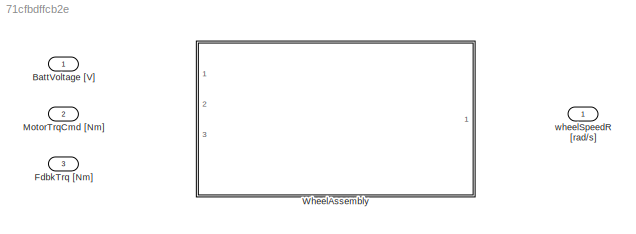
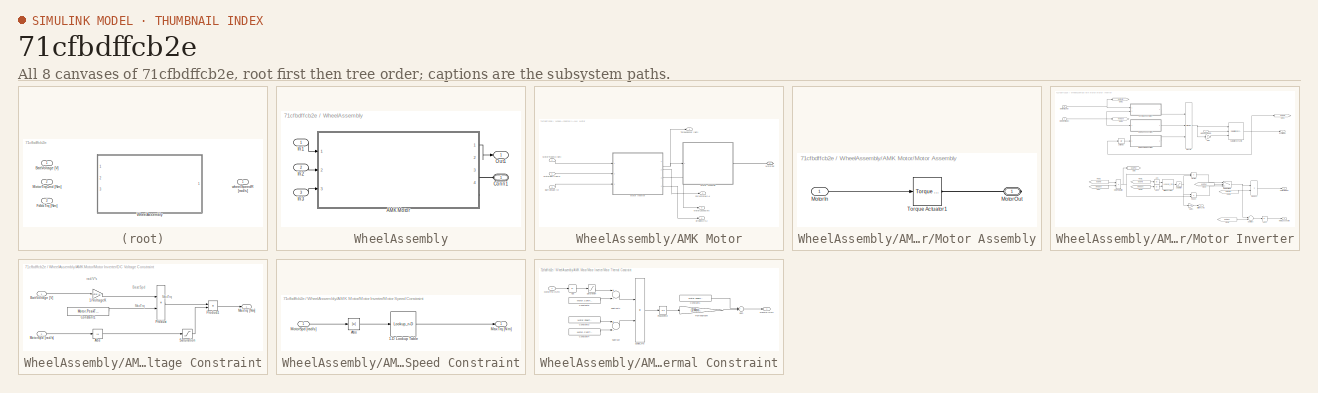
[diagram: thumbnail index - all 8 canvases of the model, root first then tree order]
MODEL slx_71cfbdffcb2e
KIND library
CONFIG AbsTol = auto
CONFIG FixedStep = auto
CONFIG MaxStep = auto
CONFIG MinStep = auto
CONFIG RelTol = 1e-3
CONFIG SampleTimeConstraint = Unconstrained
CONFIG Solver = ode45
CONFIG SolverMode = Auto
CONFIG SolverName = ode45
CONFIG StartTime = 0.0
CONFIG StopTime = 10.0
BLOCK [Inport] BattVoltage [V]
  IconDisplay = Port number
BLOCK [Inport] FdbkTrq [Nm]
  IconDisplay = Port number
  Port = 3
BLOCK [Inport] MotorTrqCmd [Nm]
  IconDisplay = Port number
  Port = 2
BLOCK [SubSystem] WheelAssembly
  Ports = [3, 1, 0, 0, 0, 1]
  RequestExecContextInheritance = off
BLOCK [SubSystem] WheelAssembly/AMK Motor
  Ports = [3, 4, 0, 0, 0, 0, 1]
  RequestExecContextInheritance = off
BLOCK [Inport] WheelAssembly/AMK Motor/BattVoltage [V]
  IconDisplay = Port number
  Port = 3
BLOCK [Outport] WheelAssembly/AMK Motor/CurrentDraw [A]
  IconDisplay = Port number
  Port = 2
BLOCK [Outport] WheelAssembly/AMK Motor/Efficiency[%]
  IconDisplay = Port number
  Port = 4
BLOCK [SubSystem] WheelAssembly/AMK Motor/Motor Assembly
  Ports = [1, 0, 0, 0, 0, 0, 1]
  RequestExecContextInheritance = off
BLOCK [Inport] WheelAssembly/AMK Motor/Motor Assembly/MotorIn
  IconDisplay = Port number
BLOCK [PMIOPort] WheelAssembly/AMK Motor/Motor Assembly/MotorOut
  Port = 1
  Side = Right
BLOCK [Reference] WheelAssembly/AMK Motor/Motor Assembly/Torque Actuator1  REF=driveline/Sensors &  (lib defined in slx_0115b7ecc7e4, slx_0630d05a24ab, +7 more)
Actuators/Torque Actuator
  Ports = [1, 0, 0, 0, 0, 0, 1]
  SourceBlock = driveline/Sensors &\nActuators/Torque Actuator
  SourceType = Torque Actuator
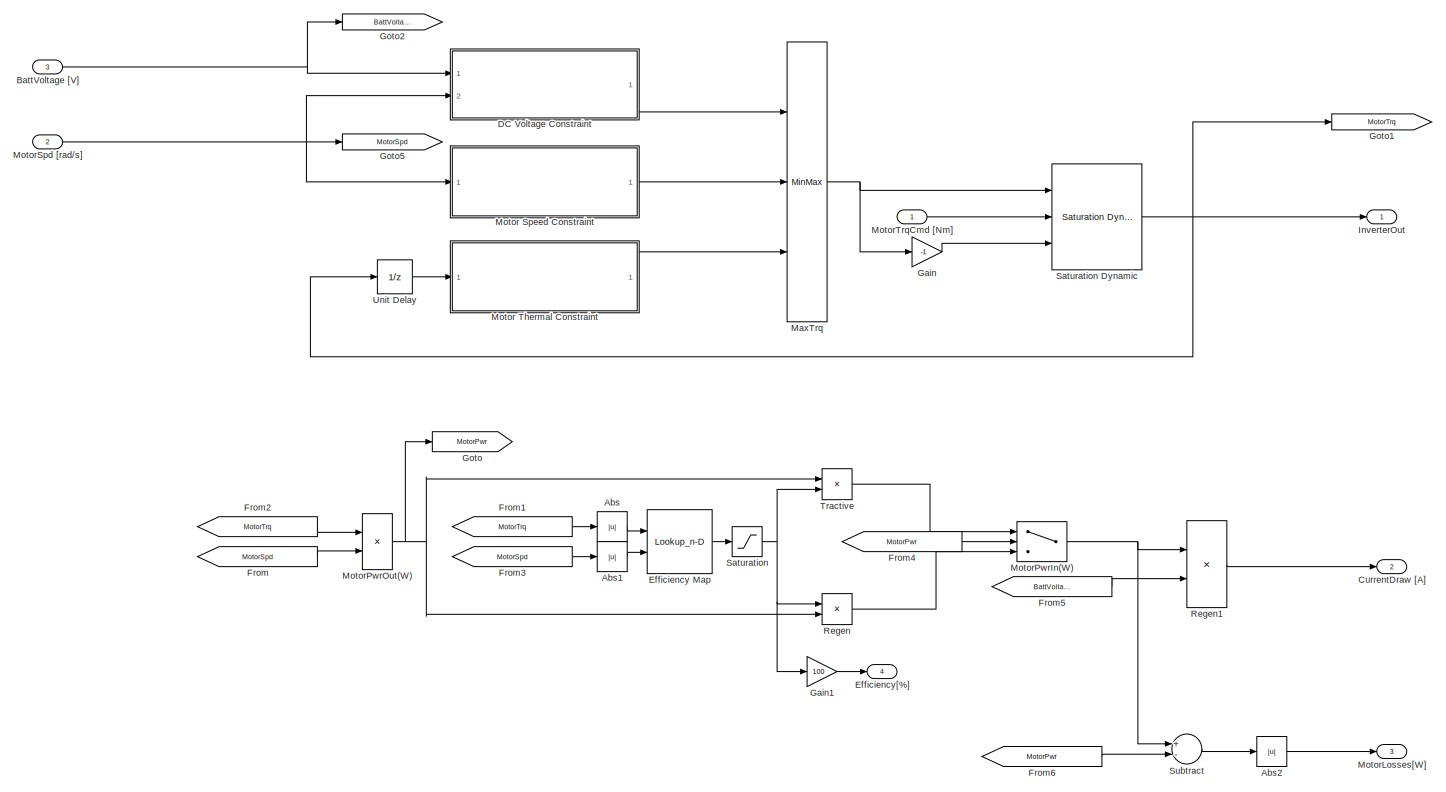
[diagram: WheelAssembly/AMK Motor/Motor Inverter - part 1/1, most of the canvas]
BLOCK [SubSystem] WheelAssembly/AMK Motor/Motor Inverter
  Ports = [3, 4]
  RequestExecContextInheritance = off
BLOCK [Abs] WheelAssembly/AMK Motor/Motor Inverter/Abs
  SaturateOnIntegerOverflow = off
BLOCK [Abs] WheelAssembly/AMK Motor/Motor Inverter/Abs1
  SaturateOnIntegerOverflow = off
BLOCK [Abs] WheelAssembly/AMK Motor/Motor Inverter/Abs2
  SaturateOnIntegerOverflow = off
BLOCK [Inport] WheelAssembly/AMK Motor/Motor Inverter/BattVoltage [V]
  IconDisplay = Port number
  Port = 3
BLOCK [Outport] WheelAssembly/AMK Motor/Motor Inverter/CurrentDraw [A]
  IconDisplay = Port number
  Port = 2
BLOCK [SubSystem] WheelAssembly/AMK Motor/Motor Inverter/DC Voltage Constraint
  Ports = [2, 1]
  RequestExecContextInheritance = off
BLOCK [Gain] WheelAssembly/AMK Motor/Motor Inverter/DC Voltage Constraint/1//VoltageK
  Gain = Motor.VoltageK
  OutDataTypeStr = Inherit: Inherit via internal rule
  ParamDataTypeStr = Inherit: Inherit via internal rule
  SaturateOnIntegerOverflow = off
BLOCK [Abs] WheelAssembly/AMK Motor/Motor Inverter/DC Voltage Constraint/Abs
  SaturateOnIntegerOverflow = off
BLOCK [Inport] WheelAssembly/AMK Motor/Motor Inverter/DC Voltage Constraint/BattVoltage [V]
  IconDisplay = Port number
BLOCK [Constant] WheelAssembly/AMK Motor/Motor Inverter/DC Voltage Constraint/Constant1
  Value = Motor.PeakTrq
BLOCK [Outport] WheelAssembly/AMK Motor/Motor Inverter/DC Voltage Constraint/MaxTrq [Nm]
  IconDisplay = Port number
BLOCK [Inport] WheelAssembly/AMK Motor/Motor Inverter/DC Voltage Constraint/MotorSpd [rad//s]
  IconDisplay = Port number
  Port = 2
BLOCK [Product] WheelAssembly/AMK Motor/Motor Inverter/DC Voltage Constraint/Product
  InputSameDT = off
  OutDataTypeStr = Inherit: Inherit via internal rule
  Ports = [2, 1]
  RndMeth = Floor
  SaturateOnIntegerOverflow = off
BLOCK [Product] WheelAssembly/AMK Motor/Motor Inverter/DC Voltage Constraint/Product1
  InputSameDT = off
  Inputs = */
  OutDataTypeStr = Inherit: Inherit via internal rule
  Ports = [2, 1]
  RndMeth = Floor
  SaturateOnIntegerOverflow = off
BLOCK [Saturate] WheelAssembly/AMK Motor/Motor Inverter/DC Voltage Constraint/Saturation
  InputPortMap = u0
  LowerLimit = Motor.MinSpd
  Ports = [1, 1]
  UpperLimit = inf
BLOCK [Lookup_n-D] WheelAssembly/AMK Motor/Motor Inverter/Efficiency Map
  BreakpointsForDimension1 = Motor.Efficiency.Trq
  BreakpointsForDimension2 = Motor.Efficiency.Spd
  InternalRulePriority = Speed
  Ports = [2, 1]
  RndMeth = Simplest
  Table = Motor.Efficiency.Eff
BLOCK [Outport] WheelAssembly/AMK Motor/Motor Inverter/Efficiency[%]
  IconDisplay = Port number
  Port = 4
BLOCK [From] WheelAssembly/AMK Motor/Motor Inverter/From
  GotoTag = MotorSpd
BLOCK [From] WheelAssembly/AMK Motor/Motor Inverter/From1
  GotoTag = MotorTrq
BLOCK [From] WheelAssembly/AMK Motor/Motor Inverter/From2
  GotoTag = MotorTrq
BLOCK [From] WheelAssembly/AMK Motor/Motor Inverter/From3
  GotoTag = MotorSpd
BLOCK [From] WheelAssembly/AMK Motor/Motor Inverter/From4
  GotoTag = MotorPwr
BLOCK [From] WheelAssembly/AMK Motor/Motor Inverter/From5
  GotoTag = BattVoltage
BLOCK [From] WheelAssembly/AMK Motor/Motor Inverter/From6
  GotoTag = MotorPwr
BLOCK [Gain] WheelAssembly/AMK Motor/Motor Inverter/Gain
  Gain = -1
  OutDataTypeStr = Inherit: Inherit via internal rule
  ParamDataTypeStr = Inherit: Inherit via internal rule
  SaturateOnIntegerOverflow = off
BLOCK [Gain] WheelAssembly/AMK Motor/Motor Inverter/Gain1
  Gain = 100
  OutDataTypeStr = Inherit: Inherit via internal rule
  ParamDataTypeStr = Inherit: Inherit via internal rule
  SaturateOnIntegerOverflow = off
BLOCK [Goto] WheelAssembly/AMK Motor/Motor Inverter/Goto
  GotoTag = MotorPwr
BLOCK [Goto] WheelAssembly/AMK Motor/Motor Inverter/Goto1
  GotoTag = MotorTrq
BLOCK [Goto] WheelAssembly/AMK Motor/Motor Inverter/Goto2
  GotoTag = BattVoltage
BLOCK [Goto] WheelAssembly/AMK Motor/Motor Inverter/Goto5
  GotoTag = MotorSpd
BLOCK [Outport] WheelAssembly/AMK Motor/Motor Inverter/InverterOut
  IconDisplay = Port number
BLOCK [MinMax] WheelAssembly/AMK Motor/Motor Inverter/MaxTrq
  InputSameDT = off
  Inputs = 3
  Ports = [3, 1]
  SaturateOnIntegerOverflow = off
BLOCK [SubSystem] WheelAssembly/AMK Motor/Motor Inverter/Motor Speed Constraint
  Ports = [1, 1]
  RequestExecContextInheritance = off
BLOCK [Lookup_n-D] WheelAssembly/AMK Motor/Motor Inverter/Motor Speed Constraint/1-D Lookup Table
  BreakpointsForDimension1 = Motor.MaxTrq.Spd
  InternalRulePriority = Speed
  NumberOfTableDimensions = 1
  Ports = [1, 1]
  RndMeth = Simplest
  Table = Motor.MaxTrq.Trq
BLOCK [Abs] WheelAssembly/AMK Motor/Motor Inverter/Motor Speed Constraint/Abs
  SaturateOnIntegerOverflow = off
BLOCK [Outport] WheelAssembly/AMK Motor/Motor Inverter/Motor Speed Constraint/MaxTrq [Nm]
  IconDisplay = Port number
BLOCK [Inport] WheelAssembly/AMK Motor/Motor Inverter/Motor Speed Constraint/MotorSpd [rad//s]
  IconDisplay = Port number
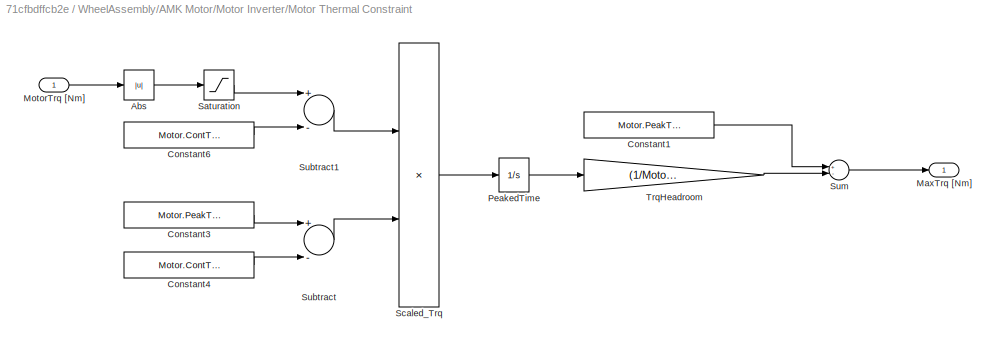
BLOCK [SubSystem] WheelAssembly/AMK Motor/Motor Inverter/Motor Thermal Constraint
  Ports = [1, 1]
  RequestExecContextInheritance = off
BLOCK [Abs] WheelAssembly/AMK Motor/Motor Inverter/Motor Thermal Constraint/Abs
  SaturateOnIntegerOverflow = off
BLOCK [Constant] WheelAssembly/AMK Motor/Motor Inverter/Motor Thermal Constraint/Constant1
  Value = Motor.PeakTrq
BLOCK [Constant] WheelAssembly/AMK Motor/Motor Inverter/Motor Thermal Constraint/Constant3
  Value = Motor.PeakTrq
BLOCK [Constant] WheelAssembly/AMK Motor/Motor Inverter/Motor Thermal Constraint/Constant4
  Value = Motor.ContTrq
BLOCK [Constant] WheelAssembly/AMK Motor/Motor Inverter/Motor Thermal Constraint/Constant6
  Value = Motor.ContTrq
BLOCK [Outport] WheelAssembly/AMK Motor/Motor Inverter/Motor Thermal Constraint/MaxTrq [Nm]
  IconDisplay = Port number
BLOCK [Inport] WheelAssembly/AMK Motor/Motor Inverter/Motor Thermal Constraint/MotorTrq [Nm]
  IconDisplay = Port number
BLOCK [Integrator] WheelAssembly/AMK Motor/Motor Inverter/Motor Thermal Constraint/PeakedTime
  LimitOutput = on
  LowerSaturationLimit = 0
  Ports = [1, 1]
BLOCK [Saturate] WheelAssembly/AMK Motor/Motor Inverter/Motor Thermal Constraint/Saturation
  InputPortMap = u0
  LowerLimit = 0
  Ports = [1, 1]
  UpperLimit = Motor.PeakTrq
BLOCK [Product] WheelAssembly/AMK Motor/Motor Inverter/Motor Thermal Constraint/Scaled_Trq
  InputSameDT = off
  Inputs = */
  OutDataTypeStr = Inherit: Inherit via internal rule
  Ports = [2, 1]
  RndMeth = Floor
  SaturateOnIntegerOverflow = off
BLOCK [Sum] WheelAssembly/AMK Motor/Motor Inverter/Motor Thermal Constraint/Subtract
  InputSameDT = off
  Inputs = +-
  OutDataTypeStr = Inherit: Inherit via internal rule
  Ports = [2, 1]
  SaturateOnIntegerOverflow = off
BLOCK [Sum] WheelAssembly/AMK Motor/Motor Inverter/Motor Thermal Constraint/Subtract1
  InputSameDT = off
  Inputs = +-
  OutDataTypeStr = Inherit: Inherit via internal rule
  Ports = [2, 1]
  SaturateOnIntegerOverflow = off
BLOCK [Sum] WheelAssembly/AMK Motor/Motor Inverter/Motor Thermal Constraint/Sum
  InputSameDT = off
  Inputs = +-
  OutDataTypeStr = Inherit: Inherit via internal rule
  Ports = [2, 1]
  SaturateOnIntegerOverflow = off
BLOCK [Gain] WheelAssembly/AMK Motor/Motor Inverter/Motor Thermal Constraint/TrqHeadroom
  Gain = (1/Motor.PeakTime) * (Motor.PeakTrq - Motor.ContTrq)
  OutDataTypeStr = Inherit: Inherit via internal rule
  ParamDataTypeStr = Inherit: Inherit via internal rule
  SaturateOnIntegerOverflow = off
BLOCK [Outport] WheelAssembly/AMK Motor/Motor Inverter/MotorLosses[W]
  IconDisplay = Port number
  Port = 3
BLOCK [Switch] WheelAssembly/AMK Motor/Motor Inverter/MotorPwrIn(W)
  Criteria = u2 > Threshold
  InputSameDT = off
  SaturateOnIntegerOverflow = off
BLOCK [Product] WheelAssembly/AMK Motor/Motor Inverter/MotorPwrOut(W)
  InputSameDT = off
  OutDataTypeStr = Inherit: Inherit via internal rule
  Ports = [2, 1]
  RndMeth = Floor
  SaturateOnIntegerOverflow = off
BLOCK [Inport] WheelAssembly/AMK Motor/Motor Inverter/MotorSpd [rad//s]
  IconDisplay = Port number
  Port = 2
BLOCK [Inport] WheelAssembly/AMK Motor/Motor Inverter/MotorTrqCmd [Nm]
  IconDisplay = Port number
BLOCK [Product] WheelAssembly/AMK Motor/Motor Inverter/Regen
  InputSameDT = off
  OutDataTypeStr = Inherit: Inherit via internal rule
  Ports = [2, 1]
  RndMeth = Floor
  SaturateOnIntegerOverflow = off
BLOCK [Product] WheelAssembly/AMK Motor/Motor Inverter/Regen1
  InputSameDT = off
  Inputs = */
  OutDataTypeStr = Inherit: Inherit via internal rule
  Ports = [2, 1]
  RndMeth = Floor
  SaturateOnIntegerOverflow = off
BLOCK [Saturate] WheelAssembly/AMK Motor/Motor Inverter/Saturation
  InputPortMap = u0
  LowerLimit = 0.01
  Ports = [1, 1]
  UpperLimit = 1
BLOCK [Reference] WheelAssembly/AMK Motor/Motor Inverter/Saturation Dynamic  REF=simulink/Discontinuities/Saturation
Dynamic
  DoSatur = off
  LockScale = off
  OutDataType = fixdt(1, 16)
  OutDataTypeStr = Inherit: Same as second input
  OutMax = []
  OutMin = []
  OutScaling = 2^-10
  OutputDataTypeScalingMode = Same as second input
  Ports = [3, 1]
  RndMeth = Floor
  SourceBlock = simulink/Discontinuities/Saturation\nDynamic
  SourceType = Saturation Dynamic
BLOCK [Sum] WheelAssembly/AMK Motor/Motor Inverter/Subtract
  InputSameDT = off
  Inputs = +-
  OutDataTypeStr = Inherit: Inherit via internal rule
  Ports = [2, 1]
  SaturateOnIntegerOverflow = off
BLOCK [Product] WheelAssembly/AMK Motor/Motor Inverter/Tractive
  InputSameDT = off
  Inputs = */
  OutDataTypeStr = Inherit: Inherit via internal rule
  Ports = [2, 1]
  RndMeth = Floor
  SaturateOnIntegerOverflow = off
BLOCK [UnitDelay] WheelAssembly/AMK Motor/Motor Inverter/Unit Delay
  InputProcessing = Elements as channels (sample based)
  SampleTime = -1
BLOCK [Outport] WheelAssembly/AMK Motor/MotorLosses[W]
  IconDisplay = Port number
  Port = 3
BLOCK [PMIOPort] WheelAssembly/AMK Motor/MotorOut
  Port = 1
  Side = Right
BLOCK [Inport] WheelAssembly/AMK Motor/MotorSpd [rad//s]
  IconDisplay = Port number
BLOCK [Inport] WheelAssembly/AMK Motor/MotorTrqCmd [Nm]
  IconDisplay = Port number
  Port = 2
BLOCK [Outport] WheelAssembly/AMK Motor/TorqueSensor [Nm]
  IconDisplay = Port number
BLOCK [PMIOPort] WheelAssembly/Conn1
  Port = 1
  Side = Left
BLOCK [Inport] WheelAssembly/In1
  IconDisplay = Port number
BLOCK [Inport] WheelAssembly/In2
  IconDisplay = Port number
  Port = 2
BLOCK [Inport] WheelAssembly/In3
  IconDisplay = Port number
  Port = 3
BLOCK [Outport] WheelAssembly/Out1
  IconDisplay = Port number
BLOCK [Outport] wheelSpeedR [rad//s]
  IconDisplay = Port number
ANNOTATION WheelAssembly/AMK Motor/Motor Inverter/DC Voltage Constraint: BaseSpd
ANNOTATION WheelAssembly/AMK Motor/Motor Inverter/DC Voltage Constraint: MaxTrq
ANNOTATION WheelAssembly/AMK Motor/Motor Inverter/DC Voltage Constraint: rad/V*s
LINE WheelAssembly/AMK Motor/BattVoltage [V]:1 -> WheelAssembly/AMK Motor/Motor Inverter:3
LINE WheelAssembly/AMK Motor/Motor Assembly/MotorIn:1 -> WheelAssembly/AMK Motor/Motor Assembly/Torque Actuator1:1
LINE WheelAssembly/AMK Motor/Motor Inverter/Abs1:1 -> WheelAssembly/AMK Motor/Motor Inverter/Efficiency Map:2
LINE WheelAssembly/AMK Motor/Motor Inverter/Abs2:1 -> WheelAssembly/AMK Motor/Motor Inverter/MotorLosses[W]:1
LINE WheelAssembly/AMK Motor/Motor Inverter/Abs:1 -> WheelAssembly/AMK Motor/Motor Inverter/Efficiency Map:1
NET WheelAssembly/AMK Motor/Motor Inverter/BattVoltage [V]:1 -> WheelAssembly/AMK Motor/Motor Inverter/DC Voltage Constraint:1, WheelAssembly/AMK Motor/Motor Inverter/Goto2:1
LINE WheelAssembly/AMK Motor/Motor Inverter/DC Voltage Constraint/1//VoltageK:1 -> WheelAssembly/AMK Motor/Motor Inverter/DC Voltage Constraint/Product:1
LINE WheelAssembly/AMK Motor/Motor Inverter/DC Voltage Constraint/Abs:1 -> WheelAssembly/AMK Motor/Motor Inverter/DC Voltage Constraint/Saturation:1
LINE WheelAssembly/AMK Motor/Motor Inverter/DC Voltage Constraint/BattVoltage [V]:1 -> WheelAssembly/AMK Motor/Motor Inverter/DC Voltage Constraint/1//VoltageK:1
LINE WheelAssembly/AMK Motor/Motor Inverter/DC Voltage Constraint/Constant1:1 -> WheelAssembly/AMK Motor/Motor Inverter/DC Voltage Constraint/Product:2
LINE WheelAssembly/AMK Motor/Motor Inverter/DC Voltage Constraint/MotorSpd [rad//s]:1 -> WheelAssembly/AMK Motor/Motor Inverter/DC Voltage Constraint/Abs:1
LINE WheelAssembly/AMK Motor/Motor Inverter/DC Voltage Constraint/Product1:1 -> WheelAssembly/AMK Motor/Motor Inverter/DC Voltage Constraint/MaxTrq [Nm]:1
LINE WheelAssembly/AMK Motor/Motor Inverter/DC Voltage Constraint/Product:1 -> WheelAssembly/AMK Motor/Motor Inverter/DC Voltage Constraint/Product1:1
LINE WheelAssembly/AMK Motor/Motor Inverter/DC Voltage Constraint/Saturation:1 -> WheelAssembly/AMK Motor/Motor Inverter/DC Voltage Constraint/Product1:2
LINE WheelAssembly/AMK Motor/Motor Inverter/DC Voltage Constraint:1 -> WheelAssembly/AMK Motor/Motor Inverter/MaxTrq:1
LINE WheelAssembly/AMK Motor/Motor Inverter/Efficiency Map:1 -> WheelAssembly/AMK Motor/Motor Inverter/Saturation:1
LINE WheelAssembly/AMK Motor/Motor Inverter/From1:1 -> WheelAssembly/AMK Motor/Motor Inverter/Abs:1
LINE WheelAssembly/AMK Motor/Motor Inverter/From2:1 -> WheelAssembly/AMK Motor/Motor Inverter/MotorPwrOut(W):1
LINE WheelAssembly/AMK Motor/Motor Inverter/From3:1 -> WheelAssembly/AMK Motor/Motor Inverter/Abs1:1
LINE WheelAssembly/AMK Motor/Motor Inverter/From4:1 -> WheelAssembly/AMK Motor/Motor Inverter/MotorPwrIn(W):2
LINE WheelAssembly/AMK Motor/Motor Inverter/From5:1 -> WheelAssembly/AMK Motor/Motor Inverter/Regen1:2
LINE WheelAssembly/AMK Motor/Motor Inverter/From6:1 -> WheelAssembly/AMK Motor/Motor Inverter/Subtract:2
LINE WheelAssembly/AMK Motor/Motor Inverter/From:1 -> WheelAssembly/AMK Motor/Motor Inverter/MotorPwrOut(W):2
LINE WheelAssembly/AMK Motor/Motor Inverter/Gain1:1 -> WheelAssembly/AMK Motor/Motor Inverter/Efficiency[%]:1
LINE WheelAssembly/AMK Motor/Motor Inverter/Gain:1 -> WheelAssembly/AMK Motor/Motor Inverter/Saturation Dynamic:3
NET WheelAssembly/AMK Motor/Motor Inverter/MaxTrq:1 -> WheelAssembly/AMK Motor/Motor Inverter/Gain:1, WheelAssembly/AMK Motor/Motor Inverter/Saturation Dynamic:1
LINE WheelAssembly/AMK Motor/Motor Inverter/Motor Speed Constraint/1-D Lookup Table:1 -> WheelAssembly/AMK Motor/Motor Inverter/Motor Speed Constraint/MaxTrq [Nm]:1
LINE WheelAssembly/AMK Motor/Motor Inverter/Motor Speed Constraint/Abs:1 -> WheelAssembly/AMK Motor/Motor Inverter/Motor Speed Constraint/1-D Lookup Table:1
LINE WheelAssembly/AMK Motor/Motor Inverter/Motor Speed Constraint/MotorSpd [rad//s]:1 -> WheelAssembly/AMK Motor/Motor Inverter/Motor Speed Constraint/Abs:1
LINE WheelAssembly/AMK Motor/Motor Inverter/Motor Speed Constraint:1 -> WheelAssembly/AMK Motor/Motor Inverter/MaxTrq:2
LINE WheelAssembly/AMK Motor/Motor Inverter/Motor Thermal Constraint/Abs:1 -> WheelAssembly/AMK Motor/Motor Inverter/Motor Thermal Constraint/Saturation:1
LINE WheelAssembly/AMK Motor/Motor Inverter/Motor Thermal Constraint/Constant1:1 -> WheelAssembly/AMK Motor/Motor Inverter/Motor Thermal Constraint/Sum:1
LINE WheelAssembly/AMK Motor/Motor Inverter/Motor Thermal Constraint/Constant3:1 -> WheelAssembly/AMK Motor/Motor Inverter/Motor Thermal Constraint/Subtract:1
LINE WheelAssembly/AMK Motor/Motor Inverter/Motor Thermal Constraint/Constant4:1 -> WheelAssembly/AMK Motor/Motor Inverter/Motor Thermal Constraint/Subtract:2
LINE WheelAssembly/AMK Motor/Motor Inverter/Motor Thermal Constraint/Constant6:1 -> WheelAssembly/AMK Motor/Motor Inverter/Motor Thermal Constraint/Subtract1:2
LINE WheelAssembly/AMK Motor/Motor Inverter/Motor Thermal Constraint/MotorTrq [Nm]:1 -> WheelAssembly/AMK Motor/Motor Inverter/Motor Thermal Constraint/Abs:1
LINE WheelAssembly/AMK Motor/Motor Inverter/Motor Thermal Constraint/PeakedTime:1 -> WheelAssembly/AMK Motor/Motor Inverter/Motor Thermal Constraint/TrqHeadroom:1
LINE WheelAssembly/AMK Motor/Motor Inverter/Motor Thermal Constraint/Saturation:1 -> WheelAssembly/AMK Motor/Motor Inverter/Motor Thermal Constraint/Subtract1:1
LINE WheelAssembly/AMK Motor/Motor Inverter/Motor Thermal Constraint/Scaled_Trq:1 -> WheelAssembly/AMK Motor/Motor Inverter/Motor Thermal Constraint/PeakedTime:1
LINE WheelAssembly/AMK Motor/Motor Inverter/Motor Thermal Constraint/Subtract1:1 -> WheelAssembly/AMK Motor/Motor Inverter/Motor Thermal Constraint/Scaled_Trq:1
LINE WheelAssembly/AMK Motor/Motor Inverter/Motor Thermal Constraint/Subtract:1 -> WheelAssembly/AMK Motor/Motor Inverter/Motor Thermal Constraint/Scaled_Trq:2
LINE WheelAssembly/AMK Motor/Motor Inverter/Motor Thermal Constraint/Sum:1 -> WheelAssembly/AMK Motor/Motor Inverter/Motor Thermal Constraint/MaxTrq [Nm]:1
LINE WheelAssembly/AMK Motor/Motor Inverter/Motor Thermal Constraint/TrqHeadroom:1 -> WheelAssembly/AMK Motor/Motor Inverter/Motor Thermal Constraint/Sum:2
LINE WheelAssembly/AMK Motor/Motor Inverter/Motor Thermal Constraint:1 -> WheelAssembly/AMK Motor/Motor Inverter/MaxTrq:3
NET WheelAssembly/AMK Motor/Motor Inverter/MotorPwrIn(W):1 -> WheelAssembly/AMK Motor/Motor Inverter/Regen1:1, WheelAssembly/AMK Motor/Motor Inverter/Subtract:1
NET WheelAssembly/AMK Motor/Motor Inverter/MotorPwrOut(W):1 -> WheelAssembly/AMK Motor/Motor Inverter/Goto:1, WheelAssembly/AMK Motor/Motor Inverter/Regen:2, WheelAssembly/AMK Motor/Motor Inverter/Tractive:1
NET WheelAssembly/AMK Motor/Motor Inverter/MotorSpd [rad//s]:1 -> WheelAssembly/AMK Motor/Motor Inverter/DC Voltage Constraint:2, WheelAssembly/AMK Motor/Motor Inverter/Goto5:1, WheelAssembly/AMK Motor/Motor Inverter/Motor Speed Constraint:1
LINE WheelAssembly/AMK Motor/Motor Inverter/MotorTrqCmd [Nm]:1 -> WheelAssembly/AMK Motor/Motor Inverter/Saturation Dynamic:2
LINE WheelAssembly/AMK Motor/Motor Inverter/Regen1:1 -> WheelAssembly/AMK Motor/Motor Inverter/CurrentDraw [A]:1
LINE WheelAssembly/AMK Motor/Motor Inverter/Regen:1 -> WheelAssembly/AMK Motor/Motor Inverter/MotorPwrIn(W):3
NET WheelAssembly/AMK Motor/Motor Inverter/Saturation Dynamic:1 -> WheelAssembly/AMK Motor/Motor Inverter/Goto1:1, WheelAssembly/AMK Motor/Motor Inverter/InverterOut:1, WheelAssembly/AMK Motor/Motor Inverter/Unit Delay:1
NET WheelAssembly/AMK Motor/Motor Inverter/Saturation:1 -> WheelAssembly/AMK Motor/Motor Inverter/Gain1:1, WheelAssembly/AMK Motor/Motor Inverter/Regen:1, WheelAssembly/AMK Motor/Motor Inverter/Tractive:2
LINE WheelAssembly/AMK Motor/Motor Inverter/Subtract:1 -> WheelAssembly/AMK Motor/Motor Inverter/Abs2:1
LINE WheelAssembly/AMK Motor/Motor Inverter/Tractive:1 -> WheelAssembly/AMK Motor/Motor Inverter/MotorPwrIn(W):1
LINE WheelAssembly/AMK Motor/Motor Inverter/Unit Delay:1 -> WheelAssembly/AMK Motor/Motor Inverter/Motor Thermal Constraint:1
NET WheelAssembly/AMK Motor/Motor Inverter:1 -> WheelAssembly/AMK Motor/Motor Assembly:1, WheelAssembly/AMK Motor/TorqueSensor [Nm]:1
LINE WheelAssembly/AMK Motor/Motor Inverter:2 -> WheelAssembly/AMK Motor/CurrentDraw [A]:1
LINE WheelAssembly/AMK Motor/Motor Inverter:3 -> WheelAssembly/AMK Motor/MotorLosses[W]:1
LINE WheelAssembly/AMK Motor/Motor Inverter:4 -> WheelAssembly/AMK Motor/Efficiency[%]:1
LINE WheelAssembly/AMK Motor/MotorSpd [rad//s]:1 -> WheelAssembly/AMK Motor/Motor Inverter:2
LINE WheelAssembly/AMK Motor/MotorTrqCmd [Nm]:1 -> WheelAssembly/AMK Motor/Motor Inverter:1
LINE WheelAssembly/AMK Motor:1 -> WheelAssembly/Out1:1
LINE WheelAssembly/In1:1 -> WheelAssembly/AMK Motor:1
LINE WheelAssembly/In2:1 -> WheelAssembly/AMK Motor:2
LINE WheelAssembly/In3:1 -> WheelAssembly/AMK Motor:3
PLINE WheelAssembly/AMK Motor/Motor Assembly/MotorOut:RConn1 -- WheelAssembly/AMK Motor/Motor Assembly/Torque Actuator1:RConn1
PLINE WheelAssembly/AMK Motor/Motor Assembly:RConn1 -- WheelAssembly/AMK Motor/MotorOut:RConn1
PLINE WheelAssembly/AMK Motor:RConn1 -- WheelAssembly/Conn1:RConn1
note: NET lines group one-source signal fan-out (src -> all destinations, sorted); 1:1 wires keep LINE
